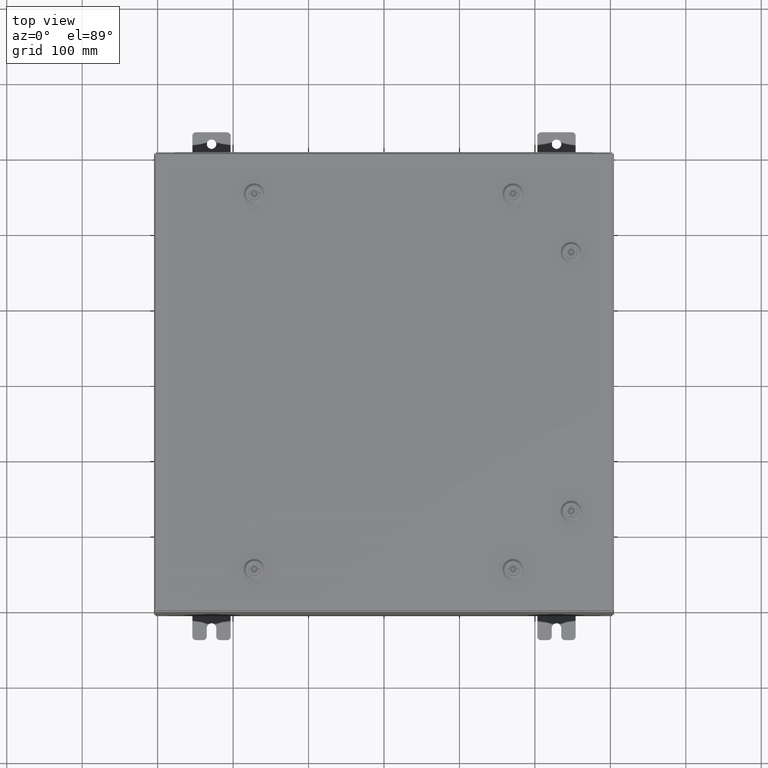
[diagram: clean part render]
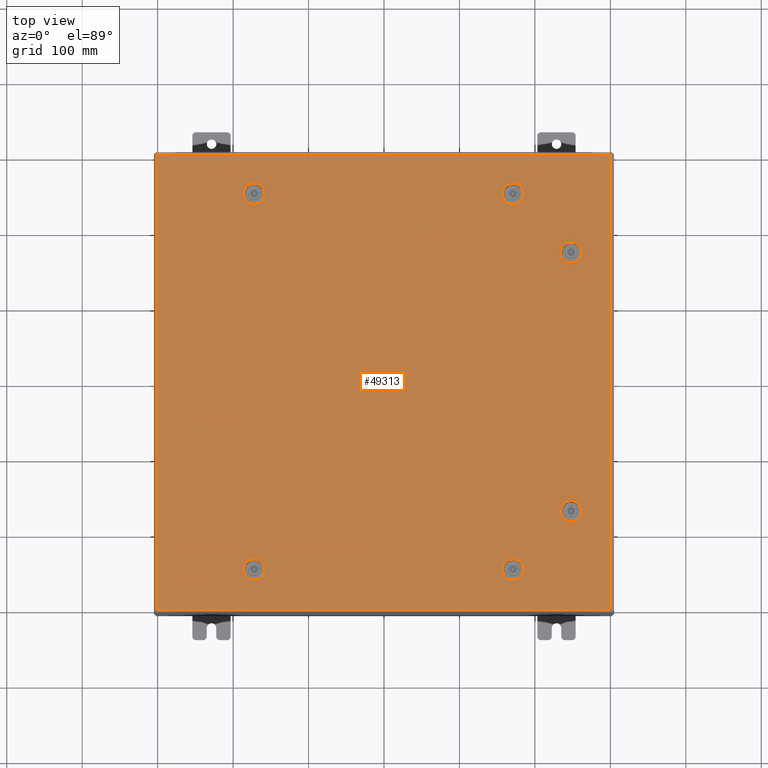
[diagram: same view with one face highlighted and labeled with its STEP entity id]
A machine part, top view. The second image highlights one B-rep face of the part: STEP entity #49313.
In plain terms, the highlighted planar face has unit normal (0, 0, -1).
Its self-contained STEP definition (entity closure, byte-faithful):
#117 = EDGE_CURVE ( 'NONE', #17779, #31392, #13381, .T. ) ;
#369 = DIRECTION ( 'NONE',  ( 1.000000000000000000, -0.0000000000000000000, -0.0000000000000000000 ) ) ;
#469 = EDGE_CURVE ( 'NONE', #43439, #35741, #4227, .T. ) ;
#569 = DIRECTION ( 'NONE',  ( -5.478697338139235000E-015, 1.000000000000000000, -0.0000000000000000000 ) ) ;
#578 = EDGE_CURVE ( 'NONE', #31392, #42040, #27240, .T. ) ;
#763 = VECTOR ( 'NONE', #369, 39.37007874015748100 ) ;
#900 = CARTESIAN_POINT ( 'NONE',  ( -6.550547624732093500, -10.18279999999998800, -2.548900087721007400E-013 ) ) ;
#1302 = CARTESIAN_POINT ( 'NONE',  ( 9.787800000000007800, 6.750000000000015100, 0.0000000000000000000 ) ) ;
#1869 = VERTEX_POINT ( 'NONE', #43921 ) ;
#2215 = LINE ( 'NONE', #52716, #49711 ) ;
#2260 = LINE ( 'NONE', #44217, #763 ) ;
#2723 = CIRCLE ( 'NONE', #57209, 0.4424999999999972800 ) ;
#3860 = FACE_BOUND ( 'NONE', #37651, .T. ) ;
#3979 = ORIENTED_EDGE ( 'NONE', *, *, #117, .F. ) ;
#4088 = CARTESIAN_POINT ( 'NONE',  ( 11.84980000000000000, -11.84980000000000000, -2.048885995248197400E-016 ) ) ;
#4227 = LINE ( 'NONE', #55709, #54855 ) ;
#4481 = CARTESIAN_POINT ( 'NONE',  ( -6.749999999999984900, -9.787799999999995400, -2.521317385144147400E-013 ) ) ;
#4748 = CARTESIAN_POINT ( 'NONE',  ( 10.18280000000000700, -6.550547624732132600, -4.574222958191090100E-014 ) ) ;
#4843 = DIRECTION ( 'NONE',  ( 1.095739467627835000E-014, -1.000000000000000000, -6.982962677686269100E-015 ) ) ;
#5321 = CARTESIAN_POINT ( 'NONE',  ( -6.749999999999984900, -9.787799999999995400, -2.521317385144147400E-013 ) ) ;
#5379 = ORIENTED_EDGE ( 'NONE', *, *, #28773, .F. ) ;
#5416 = FACE_BOUND ( 'NONE', #10858, .T. ) ;
#5755 = EDGE_CURVE ( 'NONE', #35741, #27742, #22303, .T. ) ;
#5931 = DIRECTION ( 'NONE',  ( -1.000000000000000000, 1.643609201441752500E-014, 0.0000000000000000000 ) ) ;
#5966 = VERTEX_POINT ( 'NONE', #4748 ) ;
#6171 = VERTEX_POINT ( 'NONE', #7500 ) ;
#6193 = DIRECTION ( 'NONE',  ( 1.000000000000000000, 0.0000000000000000000, 0.0000000000000000000 ) ) ;
#6412 = ORIENTED_EDGE ( 'NONE', *, *, #40465, .F. ) ;
#6611 = CARTESIAN_POINT ( 'NONE',  ( 11.84980000000000200, 11.84980000000000000, 8.878505979408856000E-016 ) ) ;
#7366 = VERTEX_POINT ( 'NONE', #60639 ) ;
#7500 = CARTESIAN_POINT ( 'NONE',  ( 6.550547624732099700, 9.392799999999997600, -4.574222958191072400E-014 ) ) ;
#7589 = CARTESIAN_POINT ( 'NONE',  ( 6.749999999999984900, 9.787799999999993600, -4.713499807438223100E-014 ) ) ;
#8147 = ORIENTED_EDGE ( 'NONE', *, *, #51185, .F. ) ;
#8327 = ORIENTED_EDGE ( 'NONE', *, *, #13516, .F. ) ;
#8552 = ORIENTED_EDGE ( 'NONE', *, *, #43782, .F. ) ;
#8622 = LINE ( 'NONE', #4088, #33155 ) ;
#8825 = CIRCLE ( 'NONE', #20386, 0.4424999999999972800 ) ;
#9067 = CARTESIAN_POINT ( 'NONE',  ( 6.550547624732099700, 9.392799999999997600, -4.574222958191072400E-014 ) ) ;
#9328 = DIRECTION ( 'NONE',  ( 0.0000000000000000000, 1.000000000000000000, 6.982962677686287200E-015 ) ) ;
#9516 = CARTESIAN_POINT ( 'NONE',  ( -6.749999999999984900, 9.787799999999991800, 0.0000000000000000000 ) ) ;
#10104 = EDGE_CURVE ( 'NONE', #52964, #34405, #21406, .T. ) ;
#10160 = DIRECTION ( 'NONE',  ( 0.0000000000000000000, 1.000000000000000000, 6.982962677686287200E-015 ) ) ;
#10342 = DIRECTION ( 'NONE',  ( -1.000000000000000000, -2.739348669069610000E-015, -6.982962677686228100E-015 ) ) ;
#10407 = CARTESIAN_POINT ( 'NONE',  ( 10.18280000000000200, 6.949452375267901200, 0.0000000000000000000 ) ) ;
#10455 = EDGE_CURVE ( 'NONE', #59172, #56537, #2215, .T. ) ;
#10538 = ORIENTED_EDGE ( 'NONE', *, *, #10104, .T. ) ;
#10720 = CIRCLE ( 'NONE', #35883, 0.4424999999999972800 ) ;
#10770 = CARTESIAN_POINT ( 'NONE',  ( 6.949452375267865600, 10.18279999999999000, 0.0000000000000000000 ) ) ;
#10858 = EDGE_LOOP ( 'NONE', ( #8327, #52121, #56777, #8552 ) ) ;
#10940 = VECTOR ( 'NONE', #4843, 39.37007874015748100 ) ;
#11157 = ORIENTED_EDGE ( 'NONE', *, *, #5755, .F. ) ;
#11397 = ORIENTED_EDGE ( 'NONE', *, *, #35630, .F. ) ;
#11726 = CARTESIAN_POINT ( 'NONE',  ( 7.192499999999983000, -9.787799999999993600, -2.019067794551563600E-013 ) ) ;
#12036 = CARTESIAN_POINT ( 'NONE',  ( -6.550547624732099700, -9.392799999999999400, -2.493734682567286900E-013 ) ) ;
#12458 = DIRECTION ( 'NONE',  ( -1.000000000000000000, 0.0000000000000000000, 6.982962677686269100E-015 ) ) ;
#12563 = CARTESIAN_POINT ( 'NONE',  ( -6.550547624732099700, -9.392799999999999400, -2.493734682567286900E-013 ) ) ;
#12577 = CIRCLE ( 'NONE', #28351, 0.4424999999999972800 ) ;
#12645 = CARTESIAN_POINT ( 'NONE',  ( -11.84980000000000000, 11.84980000000000000, -1.297627796990525000E-015 ) ) ;
#12844 = VERTEX_POINT ( 'NONE', #14314 ) ;
#12868 = DIRECTION ( 'NONE',  ( -0.0000000000000000000, -6.982962677686266700E-015, 1.000000000000000000 ) ) ;
#12891 = CARTESIAN_POINT ( 'NONE',  ( 6.749999999999984900, 9.787799999999993600, -4.713499807438223100E-014 ) ) ;
#13049 = DIRECTION ( 'NONE',  ( 1.000000000000000000, 2.739348669069610000E-015, -0.0000000000000000000 ) ) ;
#13207 = CARTESIAN_POINT ( 'NONE',  ( 6.550547624732099700, -9.392799999999997600, -2.036312386748179800E-013 ) ) ;
#13217 = DIRECTION ( 'NONE',  ( -0.0000000000000000000, -6.982962677686266700E-015, 1.000000000000000000 ) ) ;
#13381 = CIRCLE ( 'NONE', #27553, 0.4424999999999983400 ) ;
#13516 = EDGE_CURVE ( 'NONE', #51303, #48651, #59554, .T. ) ;
#13735 = CARTESIAN_POINT ( 'NONE',  ( -6.749999999999984900, 9.787799999999991800, 0.0000000000000000000 ) ) ;
#13978 = DIRECTION ( 'NONE',  ( 1.000000000000000000, -2.739348669069610000E-015, -6.982962677686248600E-015 ) ) ;
#14262 = DIRECTION ( 'NONE',  ( -6.982962677686266700E-015, -6.982962677686266700E-015, 1.000000000000000000 ) ) ;
#14314 = CARTESIAN_POINT ( 'NONE',  ( -6.949452375267865600, -10.18279999999999100, 0.0000000000000000000 ) ) ;
#14626 = CIRCLE ( 'NONE', #43618, 0.4424999999999983400 ) ;
#15211 = ORIENTED_EDGE ( 'NONE', *, *, #26975, .T. ) ;
#16211 = CARTESIAN_POINT ( 'NONE',  ( 10.18280000000000600, -6.949452375267901200, -4.852776656685392100E-014 ) ) ;
#16338 = CARTESIAN_POINT ( 'NONE',  ( 6.949452375267869200, -9.392799999999997600, 0.0000000000000000000 ) ) ;
#16414 = VERTEX_POINT ( 'NONE', #10770 ) ;
#16907 = FACE_BOUND ( 'NONE', #31380, .T. ) ;
#17438 = ORIENTED_EDGE ( 'NONE', *, *, #63387, .F. ) ;
#17490 = EDGE_CURVE ( 'NONE', #1869, #58946, #8622, .T. ) ;
#17501 = CARTESIAN_POINT ( 'NONE',  ( -6.949452375267865600, 10.18279999999999000, 0.0000000000000000000 ) ) ;
#17779 = VERTEX_POINT ( 'NONE', #11726 ) ;
#17874 = DIRECTION ( 'NONE',  ( -1.000000000000000000, 0.0000000000000000000, 6.982962677686269100E-015 ) ) ;
#18390 = CIRCLE ( 'NONE', #53214, 0.4424999999999972800 ) ;
#18409 = CARTESIAN_POINT ( 'NONE',  ( 6.550547624732093500, -10.18279999999998400, -2.091477791901900700E-013 ) ) ;
#18746 = DIRECTION ( 'NONE',  ( 1.000000000000000000, 0.0000000000000000000, 0.0000000000000000000 ) ) ;
#18848 = DIRECTION ( 'NONE',  ( -0.0000000000000000000, -6.982962677686266700E-015, 1.000000000000000000 ) ) ;
#19087 = LINE ( 'NONE', #9067, #56688 ) ;
#19180 = EDGE_LOOP ( 'NONE', ( #24720, #3979, #51384, #5379, #17438 ) ) ;
#19293 = CARTESIAN_POINT ( 'NONE',  ( 6.749999999999984900, 9.787799999999993600, -4.713499807438223100E-014 ) ) ;
#19767 = DIRECTION ( 'NONE',  ( 0.0000000000000000000, 0.0000000000000000000, -1.000000000000000000 ) ) ;
#19919 = ORIENTED_EDGE ( 'NONE', *, *, #24855, .F. ) ;
#19972 = LINE ( 'NONE', #39113, #31433 ) ;
#20088 = VERTEX_POINT ( 'NONE', #28985 ) ;
#20112 = CARTESIAN_POINT ( 'NONE',  ( 6.550547624732099700, -9.392799999999997600, -2.036312386748179800E-013 ) ) ;
#20386 = AXIS2_PLACEMENT_3D ( 'NONE', #5321, #39579, #10160 ) ;
#20430 = VECTOR ( 'NONE', #569, 39.37007874015748100 ) ;
#21135 = CIRCLE ( 'NONE', #47443, 0.4424999999999972800 ) ;
#21406 = LINE ( 'NONE', #45886, #59013 ) ;
#21497 = ORIENTED_EDGE ( 'NONE', *, *, #44698, .F. ) ;
#22109 = EDGE_CURVE ( 'NONE', #52013, #43439, #43173, .T. ) ;
#22303 = CIRCLE ( 'NONE', #23193, 0.4424999999999983400 ) ;
#22995 = CARTESIAN_POINT ( 'NONE',  ( 6.749999999999984900, -9.787799999999993600, -2.049967404400325100E-013 ) ) ;
#23047 = CARTESIAN_POINT ( 'NONE',  ( 6.749999999999984900, -9.787799999999993600, -2.049967404400325100E-013 ) ) ;
#23193 = AXIS2_PLACEMENT_3D ( 'NONE', #9516, #49498, #46880 ) ;
#23597 = DIRECTION ( 'NONE',  ( 0.0000000000000000000, 1.000000000000000000, 0.0000000000000000000 ) ) ;
#24221 = DIRECTION ( 'NONE',  ( -1.000000000000000000, 0.0000000000000000000, 6.982962677686269100E-015 ) ) ;
#24471 = CARTESIAN_POINT ( 'NONE',  ( 0.0000000000000000000, 0.0000000000000000000, 0.0000000000000000000 ) ) ;
#24529 = EDGE_LOOP ( 'NONE', ( #21497, #19919, #11397, #26065 ) ) ;
#24603 = EDGE_LOOP ( 'NONE', ( #15211, #57802, #57338, #10538 ) ) ;
#24720 = ORIENTED_EDGE ( 'NONE', *, *, #578, .F. ) ;
#24855 = EDGE_CURVE ( 'NONE', #5966, #20088, #14626, .T. ) ;
#24887 = ORIENTED_EDGE ( 'NONE', *, *, #50233, .F. ) ;
#24893 = DIRECTION ( 'NONE',  ( -6.982962677686266700E-015, -6.982962677686266700E-015, 1.000000000000000000 ) ) ;
#25269 = AXIS2_PLACEMENT_3D ( 'NONE', #24471, #19767, #54022 ) ;
#25351 = CARTESIAN_POINT ( 'NONE',  ( -11.84979999999999500, -11.84980000000000000, -2.048885995248197400E-016 ) ) ;
#25997 = CARTESIAN_POINT ( 'NONE',  ( -6.749999999999984900, 9.787799999999991800, 0.0000000000000000000 ) ) ;
#26065 = ORIENTED_EDGE ( 'NONE', *, *, #34923, .F. ) ;
#26975 = EDGE_CURVE ( 'NONE', #34405, #1869, #2260, .T. ) ;
#26980 = EDGE_LOOP ( 'NONE', ( #42630, #50329, #29741, #45642, #8147 ) ) ;
#27092 = CARTESIAN_POINT ( 'NONE',  ( -6.550547624732093500, -10.18279999999998800, -2.548900087721007400E-013 ) ) ;
#27240 = LINE ( 'NONE', #20112, #28758 ) ;
#27321 = CARTESIAN_POINT ( 'NONE',  ( 9.787800000000007800, 6.750000000000015100, 0.0000000000000000000 ) ) ;
#27553 = AXIS2_PLACEMENT_3D ( 'NONE', #23047, #24893, #37830 ) ;
#27612 = CARTESIAN_POINT ( 'NONE',  ( 9.392800000000015400, 6.949452375267905600, 0.0000000000000000000 ) ) ;
#27742 = VERTEX_POINT ( 'NONE', #41021 ) ;
#27905 = DIRECTION ( 'NONE',  ( 1.000000000000000000, 0.0000000000000000000, 6.982962677686270700E-015 ) ) ;
#28007 = CIRCLE ( 'NONE', #39293, 0.4424999999999972800 ) ;
#28351 = AXIS2_PLACEMENT_3D ( 'NONE', #27321, #61660, #32226 ) ;
#28624 = AXIS2_PLACEMENT_3D ( 'NONE', #13735, #48039, #18746 ) ;
#28676 = AXIS2_PLACEMENT_3D ( 'NONE', #43668, #14262, #48569 ) ;
#28758 = VECTOR ( 'NONE', #10342, 39.37007874015748100 ) ;
#28773 = EDGE_CURVE ( 'NONE', #45214, #48850, #62011, .T. ) ;
#28985 = CARTESIAN_POINT ( 'NONE',  ( 9.392800000000011800, -6.550547624732132600, 0.0000000000000000000 ) ) ;
#29322 = VERTEX_POINT ( 'NONE', #42942 ) ;
#29688 = VERTEX_POINT ( 'NONE', #49353 ) ;
#29741 = ORIENTED_EDGE ( 'NONE', *, *, #43749, .F. ) ;
#30487 = VERTEX_POINT ( 'NONE', #900 ) ;
#30907 = DIRECTION ( 'NONE',  ( 1.000000000000000000, 0.0000000000000000000, 0.0000000000000000000 ) ) ;
#31380 = EDGE_LOOP ( 'NONE', ( #49654, #61971, #37041, #42570, #51881 ) ) ;
#31392 = VERTEX_POINT ( 'NONE', #16338 ) ;
#31433 = VECTOR ( 'NONE', #53901, 39.37007874015748100 ) ;
#31554 = CIRCLE ( 'NONE', #59560, 0.4424999999999972800 ) ;
#32000 = DIRECTION ( 'NONE',  ( 1.000000000000000000, 1.095739467627835000E-014, 7.785697190085976300E-029 ) ) ;
#32203 = VECTOR ( 'NONE', #32000, 39.37007874015748100 ) ;
#32226 = DIRECTION ( 'NONE',  ( 1.000000000000000000, 0.0000000000000000000, 0.0000000000000000000 ) ) ;
#32322 = EDGE_CURVE ( 'NONE', #44005, #49771, #28007, .T. ) ;
#33155 = VECTOR ( 'NONE', #23597, 39.37007874015748100 ) ;
#33520 = CARTESIAN_POINT ( 'NONE',  ( 6.949452375267869200, 9.392799999999995800, -4.852776656685374400E-014 ) ) ;
#33699 = LINE ( 'NONE', #27092, #32203 ) ;
#33890 = EDGE_CURVE ( 'NONE', #57758, #16414, #31554, .T. ) ;
#34405 = VERTEX_POINT ( 'NONE', #25351 ) ;
#34778 = ORIENTED_EDGE ( 'NONE', *, *, #22109, .F. ) ;
#34923 = EDGE_CURVE ( 'NONE', #43054, #29322, #44518, .T. ) ;
#35005 = CIRCLE ( 'NONE', #53497, 0.4424999999999983400 ) ;
#35078 = CARTESIAN_POINT ( 'NONE',  ( -6.550547624732099700, 9.392799999999995800, 0.0000000000000000000 ) ) ;
#35483 = DIRECTION ( 'NONE',  ( 0.0000000000000000000, 0.0000000000000000000, 1.000000000000000000 ) ) ;
#35558 = LINE ( 'NONE', #12036, #61768 ) ;
#35630 = EDGE_CURVE ( 'NONE', #29322, #5966, #43715, .T. ) ;
#35741 = VERTEX_POINT ( 'NONE', #17501 ) ;
#35807 = VECTOR ( 'NONE', #47699, 39.37007874015748100 ) ;
#35883 = AXIS2_PLACEMENT_3D ( 'NONE', #12891, #47197, #17874 ) ;
#36038 = EDGE_CURVE ( 'NONE', #16414, #29688, #19972, .T. ) ;
#36230 = DIRECTION ( 'NONE',  ( -1.000000000000000000, -0.0000000000000000000, -0.0000000000000000000 ) ) ;
#37041 = ORIENTED_EDGE ( 'NONE', *, *, #61944, .F. ) ;
#37247 = EDGE_CURVE ( 'NONE', #6171, #57779, #19087, .T. ) ;
#37554 = DIRECTION ( 'NONE',  ( 0.0000000000000000000, -1.000000000000000000, 0.0000000000000000000 ) ) ;
#37651 = EDGE_LOOP ( 'NONE', ( #6412, #11157, #49382, #34778, #24887 ) ) ;
#37830 = DIRECTION ( 'NONE',  ( 1.000000000000000000, 0.0000000000000000000, 6.982962677686270700E-015 ) ) ;
#38744 = DIRECTION ( 'NONE',  ( -0.0000000000000000000, -6.982962677686266700E-015, 1.000000000000000000 ) ) ;
#38877 = EDGE_CURVE ( 'NONE', #58946, #52964, #55824, .T. ) ;
#39096 = EDGE_CURVE ( 'NONE', #48850, #17779, #35005, .T. ) ;
#39113 = CARTESIAN_POINT ( 'NONE',  ( 6.550547624732093500, 10.18279999999998400, -4.574222958191066700E-014 ) ) ;
#39293 = AXIS2_PLACEMENT_3D ( 'NONE', #42263, #12868, #47165 ) ;
#39579 = DIRECTION ( 'NONE',  ( -0.0000000000000000000, -6.982962677686266700E-015, 1.000000000000000000 ) ) ;
#40176 = CARTESIAN_POINT ( 'NONE',  ( -6.550547624732093500, 10.18279999999998300, 0.0000000000000000000 ) ) ;
#40465 = EDGE_CURVE ( 'NONE', #27742, #61031, #49625, .T. ) ;
#41021 = CARTESIAN_POINT ( 'NONE',  ( -6.949452375267869200, 9.392799999999995800, 0.0000000000000000000 ) ) ;
#41719 = CARTESIAN_POINT ( 'NONE',  ( 9.392800000000015400, -6.949452375267905600, -4.852776656685395200E-014 ) ) ;
#41851 = DIRECTION ( 'NONE',  ( 6.982962677686266700E-015, -0.0000000000000000000, 1.000000000000000000 ) ) ;
#42040 = VERTEX_POINT ( 'NONE', #13207 ) ;
#42263 = CARTESIAN_POINT ( 'NONE',  ( -6.749999999999984900, -9.787799999999995400, -2.521317385144147400E-013 ) ) ;
#42290 = EDGE_CURVE ( 'NONE', #7366, #12844, #8825, .T. ) ;
#42570 = ORIENTED_EDGE ( 'NONE', *, *, #37247, .F. ) ;
#42606 = CARTESIAN_POINT ( 'NONE',  ( 9.787800000000007800, -6.750000000000015100, -4.713499807438240100E-014 ) ) ;
#42630 = ORIENTED_EDGE ( 'NONE', *, *, #63097, .F. ) ;
#42650 = CARTESIAN_POINT ( 'NONE',  ( -6.550547624732099700, 9.392799999999995800, 0.0000000000000000000 ) ) ;
#42791 = EDGE_CURVE ( 'NONE', #56537, #51303, #21135, .T. ) ;
#42942 = CARTESIAN_POINT ( 'NONE',  ( 10.18280000000000600, -6.949452375267901200, -4.852776656685392100E-014 ) ) ;
#42957 = FACE_BOUND ( 'NONE', #26980, .T. ) ;
#43054 = VERTEX_POINT ( 'NONE', #41719 ) ;
#43173 = CIRCLE ( 'NONE', #28624, 0.4424999999999972800 ) ;
#43439 = VERTEX_POINT ( 'NONE', #40176 ) ;
#43618 = AXIS2_PLACEMENT_3D ( 'NONE', #48140, #18848, #53096 ) ;
#43668 = CARTESIAN_POINT ( 'NONE',  ( 6.749999999999984900, -9.787799999999993600, -2.049967404400325100E-013 ) ) ;
#43715 = LINE ( 'NONE', #16211, #55277 ) ;
#43749 = EDGE_CURVE ( 'NONE', #49771, #7366, #35558, .T. ) ;
#43782 = EDGE_CURVE ( 'NONE', #48651, #59172, #12577, .T. ) ;
#43901 = CARTESIAN_POINT ( 'NONE',  ( -6.307499999999987700, -9.787799999999995400, -2.521317385144147400E-013 ) ) ;
#43910 = AXIS2_PLACEMENT_3D ( 'NONE', #42606, #13217, #47526 ) ;
#43921 = CARTESIAN_POINT ( 'NONE',  ( 11.84980000000000000, -11.84980000000000000, -2.048885995248197400E-016 ) ) ;
#44005 = VERTEX_POINT ( 'NONE', #43901 ) ;
#44217 = CARTESIAN_POINT ( 'NONE',  ( -11.84979999999999500, -11.84980000000000000, -2.048885995248197400E-016 ) ) ;
#44518 = CIRCLE ( 'NONE', #43910, 0.4424999999999972800 ) ;
#44698 = EDGE_CURVE ( 'NONE', #20088, #43054, #60144, .T. ) ;
#44969 = CARTESIAN_POINT ( 'NONE',  ( 6.550547624732093500, -10.18279999999998400, -2.091477791901901000E-013 ) ) ;
#45214 = VERTEX_POINT ( 'NONE', #44969 ) ;
#45642 = ORIENTED_EDGE ( 'NONE', *, *, #32322, .F. ) ;
#45886 = CARTESIAN_POINT ( 'NONE',  ( -11.84980000000000000, 11.84980000000000000, -1.297627796990525000E-015 ) ) ;
#46144 = CARTESIAN_POINT ( 'NONE',  ( 10.18280000000000200, 6.949452375267901200, 0.0000000000000000000 ) ) ;
#46880 = DIRECTION ( 'NONE',  ( 1.000000000000000000, 0.0000000000000000000, 0.0000000000000000000 ) ) ;
#47165 = DIRECTION ( 'NONE',  ( 0.0000000000000000000, 1.000000000000000000, 6.982962677686287200E-015 ) ) ;
#47197 = DIRECTION ( 'NONE',  ( 6.982962677686266700E-015, -0.0000000000000000000, 1.000000000000000000 ) ) ;
#47443 = AXIS2_PLACEMENT_3D ( 'NONE', #1302, #35483, #6193 ) ;
#47526 = DIRECTION ( 'NONE',  ( 0.0000000000000000000, 1.000000000000000000, 6.982962677686269100E-015 ) ) ;
#47699 = DIRECTION ( 'NONE',  ( 1.000000000000000000, -1.643609201441752500E-014, 6.982962677686171300E-015 ) ) ;
#48039 = DIRECTION ( 'NONE',  ( 0.0000000000000000000, 0.0000000000000000000, 1.000000000000000000 ) ) ;
#48140 = CARTESIAN_POINT ( 'NONE',  ( 9.787800000000007800, -6.750000000000015100, -4.713499807438240100E-014 ) ) ;
#48468 = CARTESIAN_POINT ( 'NONE',  ( -6.307499999999987700, 9.787799999999991800, 0.0000000000000000000 ) ) ;
#48569 = DIRECTION ( 'NONE',  ( 1.000000000000000000, 0.0000000000000000000, 6.982962677686287200E-015 ) ) ;
#48651 = VERTEX_POINT ( 'NONE', #46144 ) ;
#48850 = VERTEX_POINT ( 'NONE', #62491 ) ;
#49028 = CIRCLE ( 'NONE', #28676, 0.4424999999999972800 ) ;
#49074 = PLANE ( 'NONE',  #25269 ) ;
#49313 = ADVANCED_FACE ( 'NONE', ( #57593, #5416, #56051, #42957, #16907, #3860, #54500 ), #49074, .F. ) ;
#49353 = CARTESIAN_POINT ( 'NONE',  ( 6.550547624732093500, 10.18279999999998400, -4.574222958191066700E-014 ) ) ;
#49382 = ORIENTED_EDGE ( 'NONE', *, *, #469, .F. ) ;
#49498 = DIRECTION ( 'NONE',  ( 0.0000000000000000000, 0.0000000000000000000, 1.000000000000000000 ) ) ;
#49625 = LINE ( 'NONE', #42650, #62746 ) ;
#49654 = ORIENTED_EDGE ( 'NONE', *, *, #36038, .F. ) ;
#49691 = DIRECTION ( 'NONE',  ( -8.218046007208762600E-015, -1.000000000000000000, 0.0000000000000000000 ) ) ;
#49711 = VECTOR ( 'NONE', #49691, 39.37007874015748100 ) ;
#49771 = VERTEX_POINT ( 'NONE', #12563 ) ;
#50233 = EDGE_CURVE ( 'NONE', #61031, #52013, #18390, .T. ) ;
#50329 = ORIENTED_EDGE ( 'NONE', *, *, #42290, .F. ) ;
#50511 = DIRECTION ( 'NONE',  ( 5.478697338139235000E-015, 1.000000000000000000, 6.982962677686265900E-015 ) ) ;
#51072 = CARTESIAN_POINT ( 'NONE',  ( 11.84980000000000200, 11.84980000000000000, 8.878505979408856000E-016 ) ) ;
#51185 = EDGE_CURVE ( 'NONE', #30487, #44005, #55260, .T. ) ;
#51303 = VERTEX_POINT ( 'NONE', #61791 ) ;
#51384 = ORIENTED_EDGE ( 'NONE', *, *, #39096, .F. ) ;
#51881 = ORIENTED_EDGE ( 'NONE', *, *, #56972, .F. ) ;
#52013 = VERTEX_POINT ( 'NONE', #48468 ) ;
#52058 = CARTESIAN_POINT ( 'NONE',  ( 9.392800000000017100, -6.949452375267905600, -4.852776656685395200E-014 ) ) ;
#52121 = ORIENTED_EDGE ( 'NONE', *, *, #42791, .F. ) ;
#52716 = CARTESIAN_POINT ( 'NONE',  ( 9.392800000000015400, 6.949452375267905600, 0.0000000000000000000 ) ) ;
#52964 = VERTEX_POINT ( 'NONE', #12645 ) ;
#53096 = DIRECTION ( 'NONE',  ( 0.0000000000000000000, 1.000000000000000000, 6.982962677686252500E-015 ) ) ;
#53214 = AXIS2_PLACEMENT_3D ( 'NONE', #25997, #60311, #30907 ) ;
#53497 = AXIS2_PLACEMENT_3D ( 'NONE', #22995, #57308, #27905 ) ;
#53563 = DIRECTION ( 'NONE',  ( 6.982962677686266700E-015, -0.0000000000000000000, 1.000000000000000000 ) ) ;
#53901 = DIRECTION ( 'NONE',  ( -1.000000000000000000, -1.095739467627835000E-014, 6.982962677686269100E-015 ) ) ;
#54022 = DIRECTION ( 'NONE',  ( -1.000000000000000000, 0.0000000000000000000, -0.0000000000000000000 ) ) ;
#54281 = VECTOR ( 'NONE', #36230, 39.37007874015748100 ) ;
#54500 = FACE_OUTER_BOUND ( 'NONE', #24603, .T. ) ;
#54855 = VECTOR ( 'NONE', #5931, 39.37007874015748100 ) ;
#55151 = CARTESIAN_POINT ( 'NONE',  ( 9.392800000000011800, 6.550547624732132600, 0.0000000000000000000 ) ) ;
#55260 = CIRCLE ( 'NONE', #59478, 0.4424999999999972800 ) ;
#55277 = VECTOR ( 'NONE', #50511, 39.37007874015748100 ) ;
#55709 = CARTESIAN_POINT ( 'NONE',  ( -6.550547624732093500, 10.18279999999998300, 0.0000000000000000000 ) ) ;
#55824 = LINE ( 'NONE', #51072, #54281 ) ;
#56051 = FACE_BOUND ( 'NONE', #19180, .T. ) ;
#56537 = VERTEX_POINT ( 'NONE', #55151 ) ;
#56688 = VECTOR ( 'NONE', #13978, 39.37007874015748100 ) ;
#56777 = ORIENTED_EDGE ( 'NONE', *, *, #10455, .F. ) ;
#56972 = EDGE_CURVE ( 'NONE', #29688, #6171, #2723, .T. ) ;
#57209 = AXIS2_PLACEMENT_3D ( 'NONE', #19293, #53563, #24221 ) ;
#57308 = DIRECTION ( 'NONE',  ( -6.982962677686266700E-015, -6.982962677686266700E-015, 1.000000000000000000 ) ) ;
#57338 = ORIENTED_EDGE ( 'NONE', *, *, #38877, .T. ) ;
#57593 = FACE_BOUND ( 'NONE', #24529, .T. ) ;
#57758 = VERTEX_POINT ( 'NONE', #58032 ) ;
#57779 = VERTEX_POINT ( 'NONE', #33520 ) ;
#57802 = ORIENTED_EDGE ( 'NONE', *, *, #17490, .T. ) ;
#58032 = CARTESIAN_POINT ( 'NONE',  ( 7.192499999999982100, 9.787799999999993600, -5.022495905925838200E-014 ) ) ;
#58946 = VERTEX_POINT ( 'NONE', #6611 ) ;
#59013 = VECTOR ( 'NONE', #37554, 39.37007874015748100 ) ;
#59172 = VERTEX_POINT ( 'NONE', #27612 ) ;
#59478 = AXIS2_PLACEMENT_3D ( 'NONE', #4481, #38744, #9328 ) ;
#59554 = LINE ( 'NONE', #10407, #20430 ) ;
#59560 = AXIS2_PLACEMENT_3D ( 'NONE', #7589, #41851, #12458 ) ;
#60144 = LINE ( 'NONE', #52058, #10940 ) ;
#60311 = DIRECTION ( 'NONE',  ( 0.0000000000000000000, 0.0000000000000000000, 1.000000000000000000 ) ) ;
#60639 = CARTESIAN_POINT ( 'NONE',  ( -6.949452375267869200, -9.392799999999997600, -2.493734682567286900E-013 ) ) ;
#61013 = DIRECTION ( 'NONE',  ( -1.000000000000000000, 2.739348669069610000E-015, 7.785697190086040200E-029 ) ) ;
#61031 = VERTEX_POINT ( 'NONE', #35078 ) ;
#61660 = DIRECTION ( 'NONE',  ( 0.0000000000000000000, 0.0000000000000000000, 1.000000000000000000 ) ) ;
#61768 = VECTOR ( 'NONE', #61013, 39.37007874015748100 ) ;
#61791 = CARTESIAN_POINT ( 'NONE',  ( 10.18280000000000600, 6.550547624732132600, 0.0000000000000000000 ) ) ;
#61944 = EDGE_CURVE ( 'NONE', #57779, #57758, #10720, .T. ) ;
#61971 = ORIENTED_EDGE ( 'NONE', *, *, #33890, .F. ) ;
#62011 = LINE ( 'NONE', #18409, #35807 ) ;
#62491 = CARTESIAN_POINT ( 'NONE',  ( 6.949452375267865600, -10.18279999999999100, -2.063622422052470700E-013 ) ) ;
#62746 = VECTOR ( 'NONE', #13049, 39.37007874015748100 ) ;
#63097 = EDGE_CURVE ( 'NONE', #12844, #30487, #33699, .T. ) ;
#63387 = EDGE_CURVE ( 'NONE', #42040, #45214, #49028, .T. ) ;